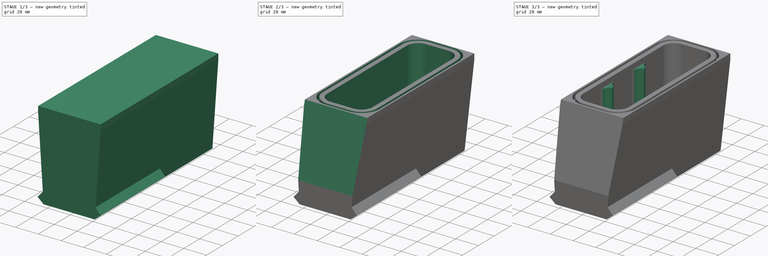
[diagram: build sequence overview — one tinted view per stage of 3, left to right]
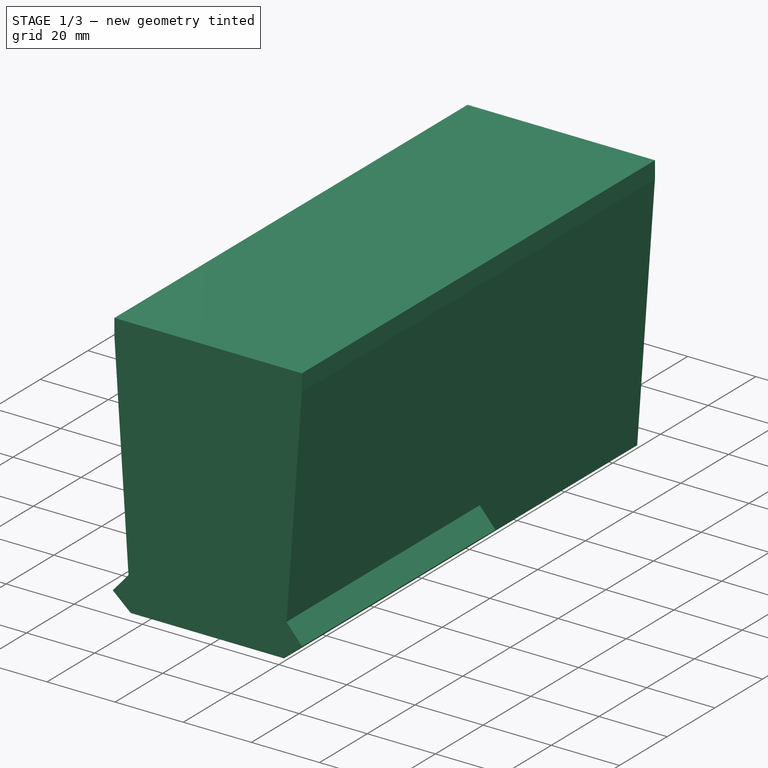
[diagram: stage 1 of 3 — iso view after this stage's code; geometry added in this stage tinted green]
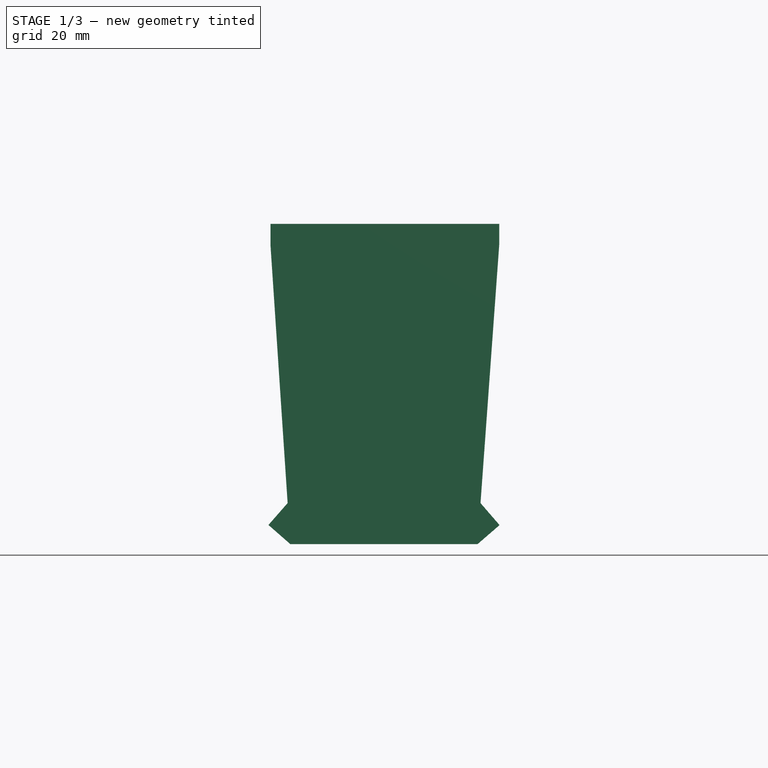
[diagram: stage 1 of 3 — front view after this stage's code; geometry added in this stage tinted green]
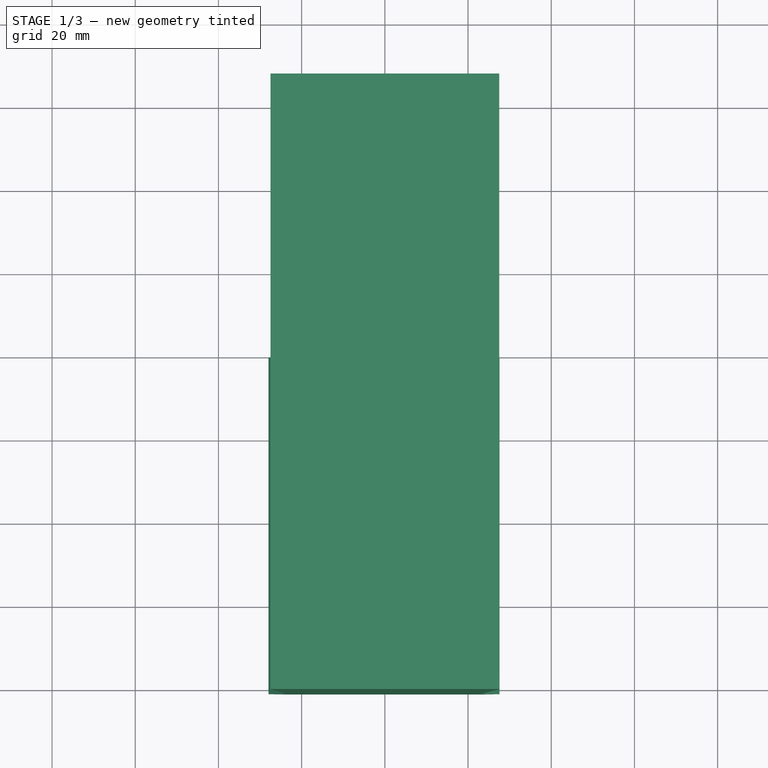
[diagram: stage 1 of 3 — top view after this stage's code; geometry added in this stage tinted green]
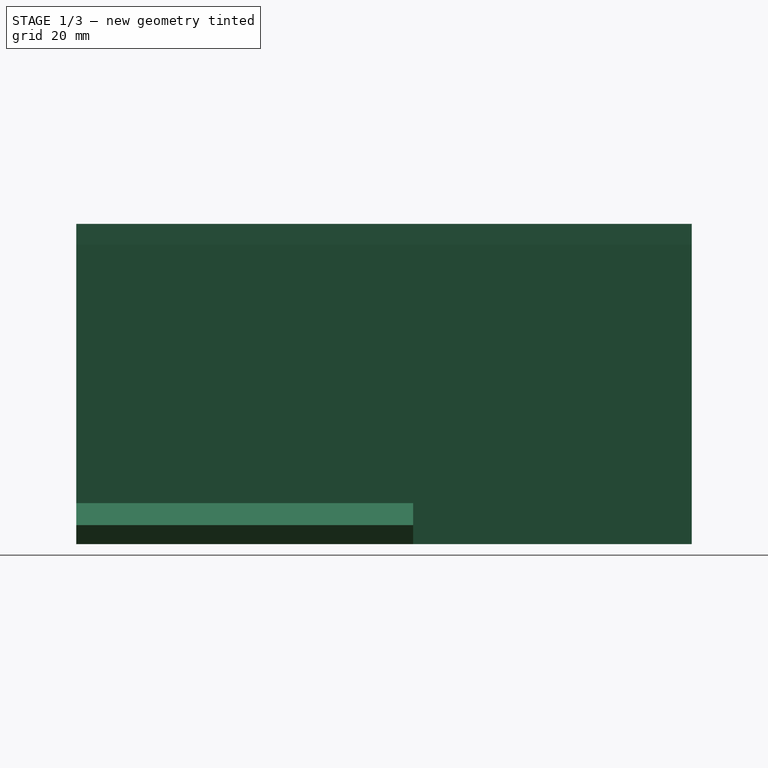
[diagram: stage 1 of 3 — right view after this stage's code; geometry added in this stage tinted green]
FCSTD DOCUMENT  (FreeCAD 1.0R39319 (Git))
Label: 3S4P (12V) 18650 Li-Ion battery pack for bike_SHALM
License: Creative Commons Attribution-NonCommercial 4.0
LicenseURL: https://creativecommons.org/licenses/by-nc/4.0/
objects: Sketcher::SketchObject×6, PartDesign::Pad×3, PartDesign::Pocket×2, PartDesign::Mirrored×2, PartDesign::SubtractivePipe×1, PartDesign::MultiTransform×1, PartDesign::Body×1
note: 37 computed .brp shape members not serialized (recipe doc carries the construction recipe); baked Part::Feature solids carry a one-line shape summary decoded from their .brp

FEATURE [Sketcher::SketchObject] Sketch
  ArcFitTolerance = 1e-06
  AttachmentSupport = -> [XZ_Plane]
  FullyConstrained = false
  MakeInternals = false
  MapMode = 5
  Placement = pos=(0,0,0) rot=(1,0,0;1.5708rad)
  sketch-geometry (6):
    g0: LineSegment StartX=-27.5 StartY=0 StartZ=0 EndX=-27.5 EndY=5 EndZ=0
    g1: LineSegment StartX=-27.5 StartY=5 StartZ=0 EndX=27.5 EndY=5 EndZ=0
    g2: LineSegment StartX=27.5 StartY=5 StartZ=0 EndX=27.5 EndY=0 EndZ=0
    g3: LineSegment StartX=27.5 StartY=0 StartZ=0 EndX=22.2839 EndY=-72 EndZ=0
    g4: LineSegment StartX=22.2839 StartY=-72 StartZ=0 EndX=-22.7161 EndY=-72 EndZ=0
    g5: LineSegment StartX=-22.7161 StartY=-72 StartZ=0 EndX=-27.5 EndY=0 EndZ=0
  constraints (16):
    c: PointOnObject(g0,g-1)
    c: Vertical(g0)
    c: Coincident(g0,g1)
    c: Horizontal(g1)
    c: Coincident(g1,g2)
    c: Vertical(g2)
    c: Coincident(g2,g3)
    c: Coincident(g3,g4)
    c: Horizontal(g4)
    c: Coincident(g4,g5)
    c: Coincident(g5,g0)
    c: Symmetric(g0,g2,g-2)
    c: DistanceY(g2,g2) = 5  'hh'
    c: DistanceX(g1,g1) = 55
    c: DistanceY(g3,g3) = 72
    c: DistanceX(g4,g4) = 45
FEATURE [PartDesign::Pad] Pad
  Direction = (0,-1,2e-16)
  Length = 81
  Length2 = 67
  Placement = pos=(0,0,0) rot=(1,0,0;1.5708rad)
  Profile = -> Sketch
  ReferenceAxis = -> Sketch [N_Axis]
  Refine = true
  Suppressed = false
  Type = 4
FEATURE [Sketcher::SketchObject] Sketch001
  ArcFitTolerance = 1e-06
  AttachmentSupport = -> [XZ_Plane]
  ExternalGeometry = -> [Sketch]
  FullyConstrained = true
  MakeInternals = false
  MapMode = 5
  Placement = pos=(0,0,0) rot=(1,0,0;1.5708rad)
  sketch-geometry (6):
    g0: LineSegment StartX=22.2839 StartY=-72 StartZ=0 EndX=27.5784 EndY=-67.4208 EndZ=0
    g1: LineSegment StartX=27.5784 StartY=-67.4208 StartZ=0 EndX=22.9992 EndY=-62.1264 EndZ=0
    g2: LineSegment StartX=22.9992 StartY=-62.1264 StartZ=0 EndX=22.2839 EndY=-72 EndZ=0
    g3: LineSegment StartX=-22.7161 StartY=-72 StartZ=0 EndX=-27.9831 EndY=-67.3893 EndZ=0
    g4: LineSegment StartX=-27.9831 StartY=-67.3893 StartZ=0 EndX=-23.3724 EndY=-62.1223 EndZ=0
    g5: LineSegment StartX=-23.3724 StartY=-62.1223 StartZ=0 EndX=-22.7161 EndY=-72 EndZ=0
  constraints (16):
    c: Coincident(g-3,g0)
    c: Coincident(g0,g1)
    c: PointOnObject(g1,g-3)
    c: Coincident(g1,g2)
    c: Coincident(g2,g0)
    c: Coincident(g-4,g3)
    c: Coincident(g3,g4)
    c: PointOnObject(g4,g-4)
    c: Coincident(g4,g5)
    c: Coincident(g5,g3)
    c: Equal(g3,g0)
    c: Equal(g1,g0)
    c: Equal(g4,g3)
    c: Equal(g5,g2)
    c: Perpendicular(g0,g1)
    c: Distance(g0,g0) = 7
FEATURE [PartDesign::Pad] Pad001
  BaseFeature = -> Pad
  Direction = (0,-1,2e-16)
  Length = 17
  Length2 = 10
  Placement = pos=(0,0,0) rot=(1,0,0;1.5708rad)
  Profile = -> Sketch001
  ReferenceAxis = -> Sketch001 [N_Axis]
  Refine = true
  Suppressed = false
  Type = 1
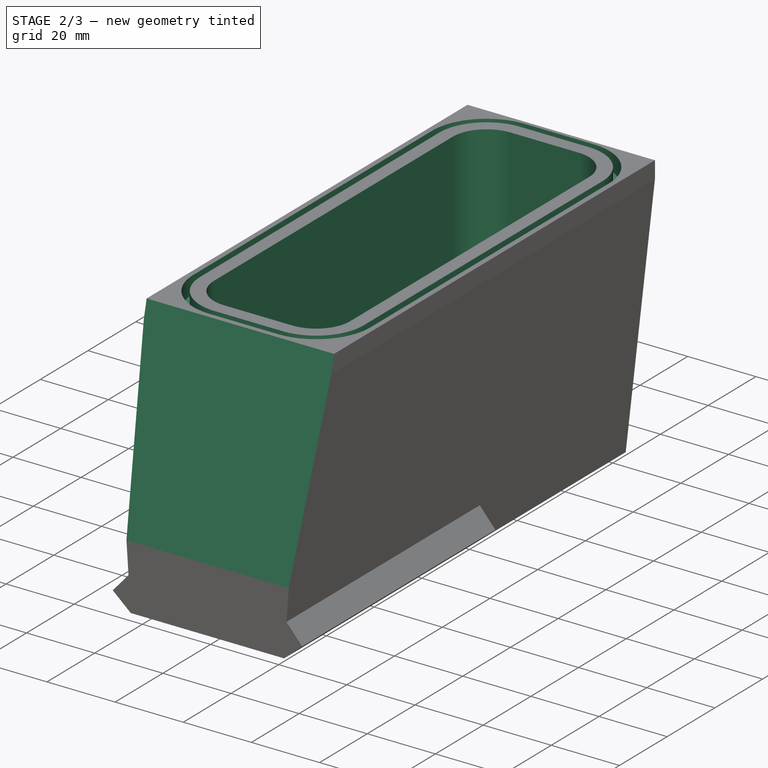
[diagram: stage 2 of 3 — iso view after this stage's code; geometry added in this stage tinted green]
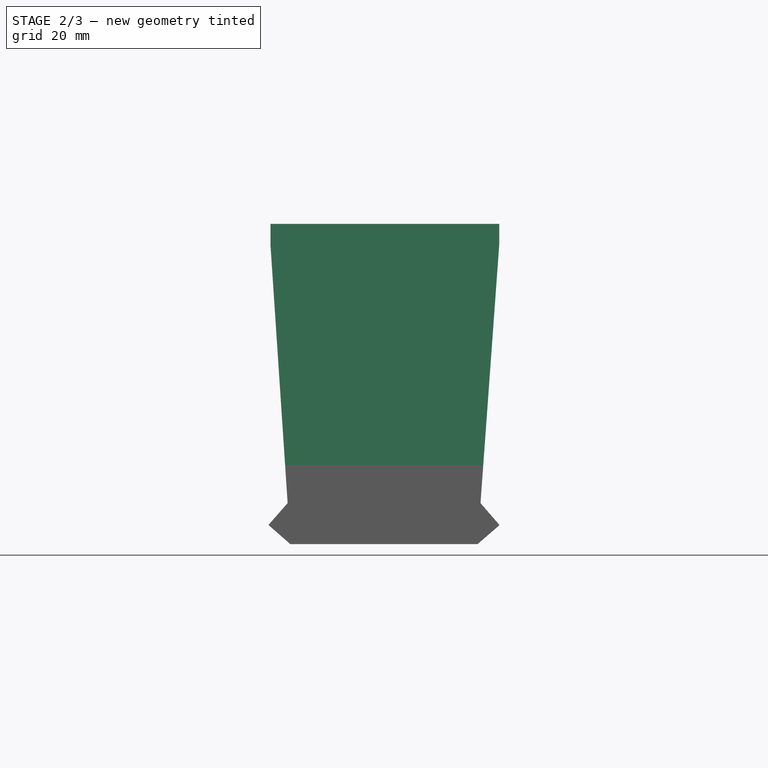
[diagram: stage 2 of 3 — front view after this stage's code; geometry added in this stage tinted green]
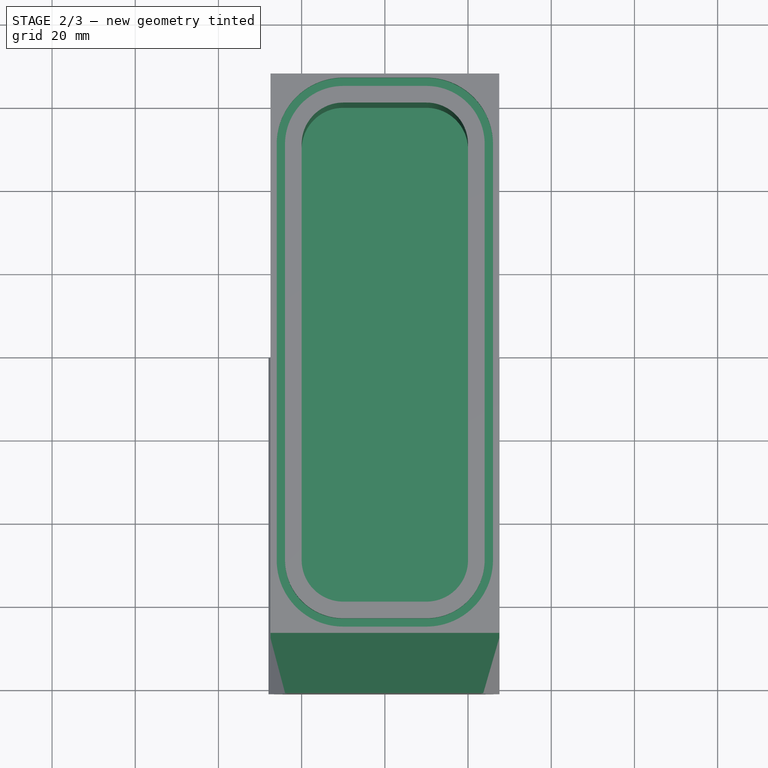
[diagram: stage 2 of 3 — top view after this stage's code; geometry added in this stage tinted green]
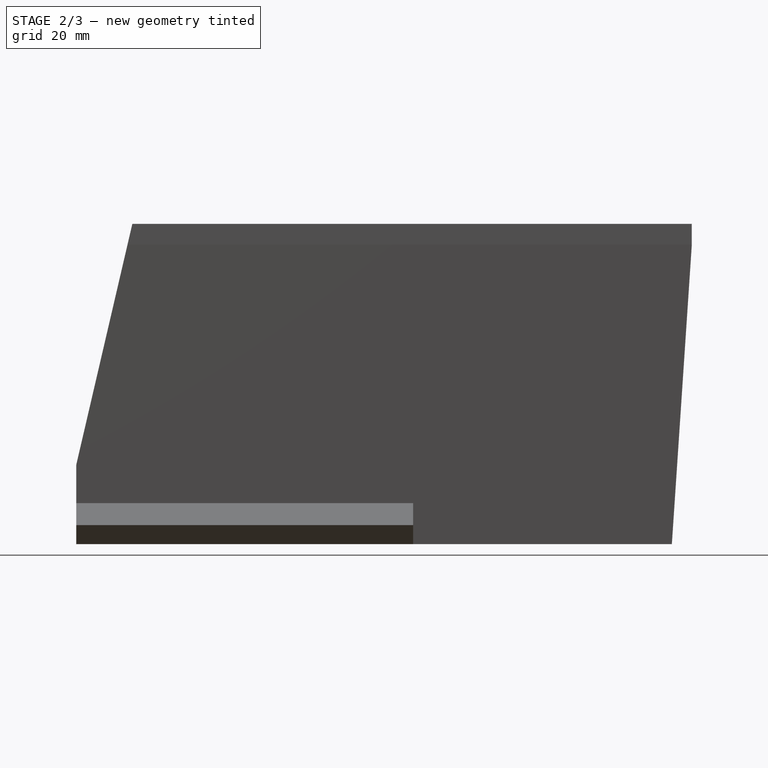
[diagram: stage 2 of 3 — right view after this stage's code; geometry added in this stage tinted green]
FEATURE [Sketcher::SketchObject] Sketch002
  ArcFitTolerance = 1e-06
  AttachmentSupport = -> [YZ_Plane]
  ExternalGeometry = -> [Sketch]
  FullyConstrained = true
  MakeInternals = false
  MapMode = 5
  Placement = pos=(0,0,0) rot=(0.57735,0.57735,0.57735;2.0944rad)
  expr: Constraints[15] = Pad.Length
  expr: Constraints[7] = Pad.Length2
  sketch-geometry (6):
    g0: LineSegment StartX=67 StartY=0 StartZ=0 EndX=67 EndY=-72 EndZ=0
    g1: LineSegment StartX=67 StartY=-72 StartZ=0 EndX=62.2 EndY=-72 EndZ=0
    g2: LineSegment StartX=62.2 StartY=-72 StartZ=0 EndX=67 EndY=0 EndZ=0
    g3: LineSegment StartX=-67.5 StartY=5 StartZ=0 EndX=-81 EndY=5 EndZ=0
    g4: LineSegment StartX=-81 StartY=5 StartZ=0 EndX=-81 EndY=-53 EndZ=0
    g5: LineSegment StartX=-81 StartY=-53 StartZ=0 EndX=-67.5 EndY=5 EndZ=0
  constraints (18):
    c: PointOnObject(g0,g-1)
    c: Vertical(g0)
    c: Coincident(g0,g1)
    c: Horizontal(g1)
    c: Coincident(g1,g2)
    c: Coincident(g2,g0)
    c: Horizontal(g1,g-3)
    c: DistanceX(g-1,g0) = 67
    c: DistanceX(g1,g1) = 4.8
    c: Horizontal(g3)
    c: Coincident(g3,g4)
    c: Vertical(g4)
    c: Coincident(g4,g5)
    c: Coincident(g5,g3)
    c: Horizontal(g3,g-4)
    c: DistanceX(g3,g-1) = 81
    c: DistanceX(g3,g3) = 13.5
    c: DistanceY(g-3,g4) = 19
FEATURE [PartDesign::Pocket] Pocket
  BaseFeature = -> Pad001
  Direction = (-1,0,0)
  Length = 5
  Length2 = 5
  Midplane = true
  Placement = pos=(0,0,0) rot=(1,0,0;1.5708rad)
  Profile = -> Sketch002
  ReferenceAxis = -> Sketch002 [N_Axis]
  Refine = true
  Suppressed = false
  Type = 1
FEATURE [Sketcher::SketchObject] Sketch003
  ArcFitTolerance = 1e-06
  AttachmentSupport = -> [XY_Plane]
  FullyConstrained = true
  MakeInternals = false
  MapMode = 5
  sketch-geometry (10):
    g0: LineSegment StartX=-10 StartY=-60 StartZ=0 EndX=10 EndY=-60 EndZ=0
    g1: LineSegment StartX=20 StartY=-50 StartZ=0 EndX=20 EndY=50 EndZ=0
    g2: LineSegment StartX=10 StartY=60 StartZ=0 EndX=-10 EndY=60 EndZ=0
    g3: LineSegment StartX=-20 StartY=50 StartZ=0 EndX=-20 EndY=-50 EndZ=0
    g4: ArcOfCircle CenterX=-10 CenterY=-50 CenterZ=0 NormalX=0 NormalY=0 NormalZ=1 AngleXU=0 Radius=10 StartAngle=3.14159 EndAngle=4.71239
    g5: ArcOfCircle CenterX=10 CenterY=-50 CenterZ=0 NormalX=0 NormalY=0 NormalZ=1 AngleXU=0 Radius=10 StartAngle=4.71239 EndAngle=6.28319
    g6: ArcOfCircle CenterX=10 CenterY=50 CenterZ=0 NormalX=0 NormalY=0 NormalZ=1 AngleXU=0 Radius=10 StartAngle=0 EndAngle=1.5708
    g7: ArcOfCircle CenterX=-10 CenterY=50 CenterZ=0 NormalX=0 NormalY=0 NormalZ=1 AngleXU=0 Radius=10 StartAngle=1.5708 EndAngle=3.14159
    g8: GeomPoint [constr] X=20 Y=60 Z=0
    g9: GeomPoint [constr] X=0 Y=0 Z=0
  constraints (22):
    c: Tangent(g0,g4) = -1.5708
    c: Tangent(g0,g5) = -1.5708
    c: Tangent(g1,g5) = -1.5708
    c: Tangent(g1,g6) = -1.5708
    c: Tangent(g2,g6) = -1.5708
    c: Tangent(g2,g7) = -1.5708
    c: Tangent(g3,g7) = -1.5708
    c: Tangent(g3,g4) = -1.5708
    c: Horizontal(g0)
    c: Horizontal(g2)
    c: Vertical(g1)
    c: Vertical(g3)
    c: Equal(g4,g5)
    c: Equal(g5,g6)
    c: Equal(g6,g7)
    c: Symmetric(g2,g0,g9)
    c: PointOnObject(g8,g1)
    c: PointOnObject(g8,g2)
    c: Distance(g1,g3) = 40
    c: Distance(g0,g2) = 120
    c: Radius(g5) = 10
    c: Coincident(g9,g-1)
FEATURE [PartDesign::Pocket] Pocket001
  BaseFeature = -> Pocket
  Direction = (0,0,-1)
  Length = 68
  Length2 = 5
  Placement = pos=(0,0,0) rot=(1,0,0;1.5708rad)
  Profile = -> Sketch003
  ReferenceAxis = -> Sketch003 [N_Axis]
  Refine = true
  Suppressed = false
  Type = 4
  expr: Length2 = Sketch.Constraints.hh
FEATURE [Sketcher::SketchObject] Sketch004
  ArcFitTolerance = 1e-06
  AttachmentSupport = -> [Sketch003]
  ExternalGeometry = -> [Sketch]
  FullyConstrained = true
  MakeInternals = false
  MapMode = 45
  Placement = pos=(-20,0,0) rot=(0,0.707107,0.707107;3.14159rad)
  sketch-geometry (4):
    g0: LineSegment StartX=6 StartY=0 StartZ=0 EndX=6 EndY=5 EndZ=0
    g1: LineSegment StartX=6 StartY=5 StartZ=0 EndX=4 EndY=5 EndZ=0
    g2: LineSegment StartX=4 StartY=5 StartZ=0 EndX=4 EndY=0 EndZ=0
    g3: LineSegment StartX=4 StartY=0 StartZ=0 EndX=6 EndY=0 EndZ=0
  constraints (12):
    c: Coincident(g0,g1)
    c: Coincident(g1,g2)
    c: Coincident(g2,g3)
    c: Coincident(g3,g0)
    c: Vertical(g0)
    c: Vertical(g2)
    c: Horizontal(g1)
    c: Horizontal(g3)
    c: PointOnObject(g0,g-1)
    c: PointOnObject(g0,g-3)
    c: DistanceX(g-1,g0) = 6
    c: DistanceX(g3,g3) = 2
FEATURE [PartDesign::SubtractivePipe] SubtractivePipe
  AuxilleryCurvelinear = true
  AuxillerySpineTangent = false
  BaseFeature = -> Pocket001
  Binormal = (0,0,0)
  Mode = 0
  Placement = pos=(0,0,0) rot=(1,0,0;1.5708rad)
  Profile = -> Sketch004
  Refine = true
  Spine = -> Sketch003
  SpineTangent = false
  Suppressed = false
  Transformation = 0
  Transition = 2
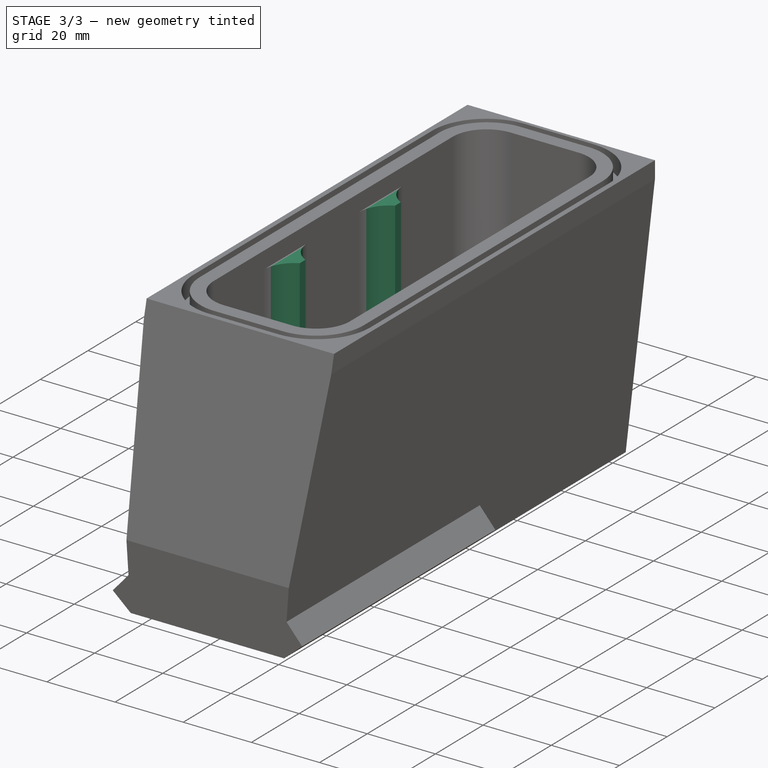
[diagram: stage 3 of 3 — iso view after this stage's code; geometry added in this stage tinted green]
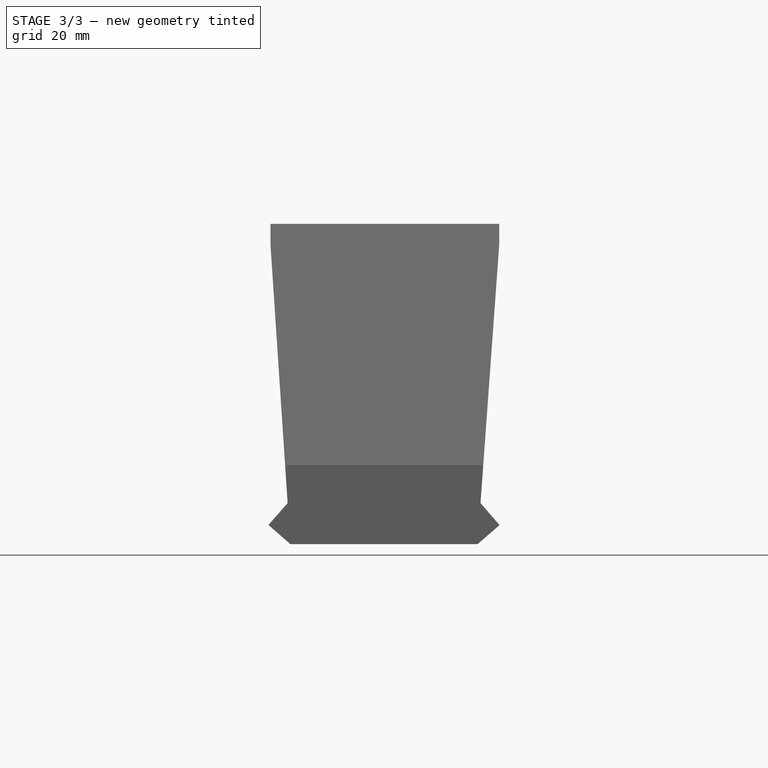
[diagram: stage 3 of 3 — front view after this stage's code; geometry added in this stage tinted green]
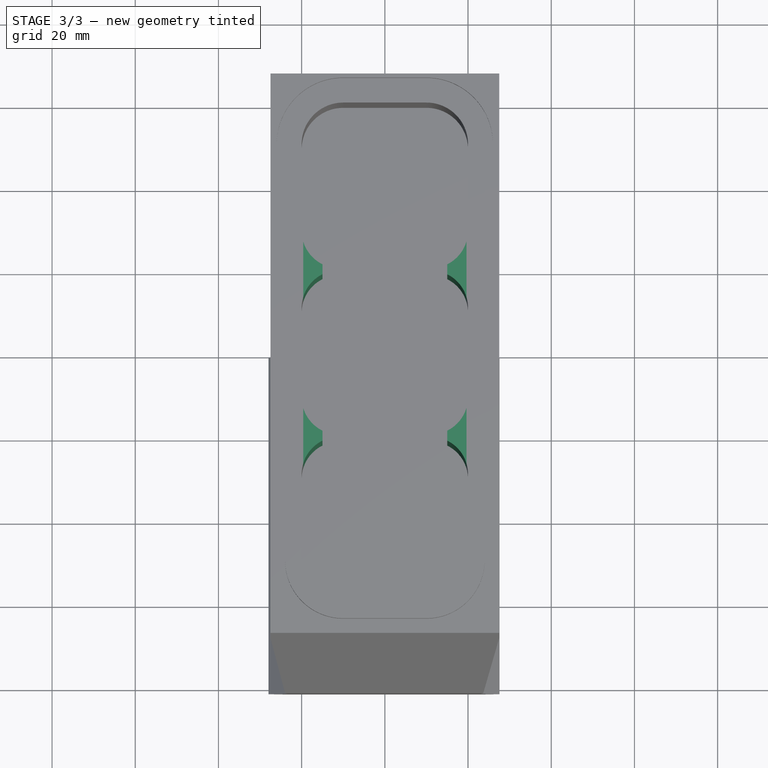
[diagram: stage 3 of 3 — top view after this stage's code; geometry added in this stage tinted green]
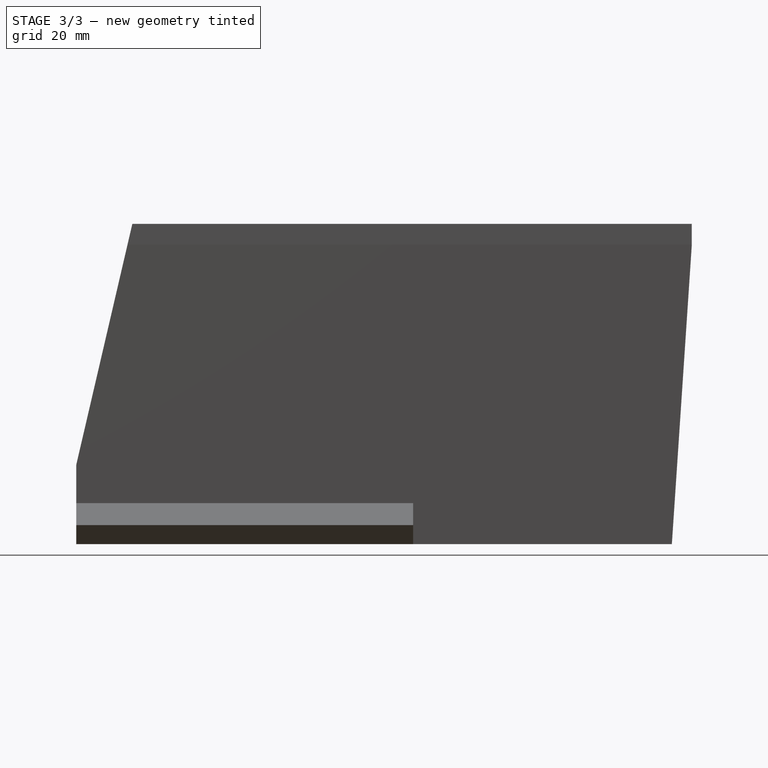
[diagram: stage 3 of 3 — right view after this stage's code; geometry added in this stage tinted green]
FEATURE [Sketcher::SketchObject] Sketch005
  ArcFitTolerance = 1e-06
  AttachmentSupport = -> [XY_Plane]
  ExternalGeometry = -> [Sketch003]
  FullyConstrained = true
  MakeInternals = false
  MapMode = 5
  sketch-geometry (5):
    g0: LineSegment StartX=15 StartY=18.8 StartZ=0 EndX=15 EndY=21.2 EndZ=0
    g1: ArcOfCircle CenterX=11 CenterY=29.2623 CenterZ=0 NormalX=0 NormalY=0 NormalZ=1 AngleXU=0 Radius=9 StartAngle=5.17294 EndAngle=6.28319
    g2: LineSegment StartX=20 StartY=29.2623 StartZ=0 EndX=20 EndY=10.7377 EndZ=0
    g3: ArcOfCircle CenterX=11 CenterY=10.7377 CenterZ=0 NormalX=0 NormalY=0 NormalZ=1 AngleXU=0 Radius=9 StartAngle=1e-16 EndAngle=1.11024
    g4: GeomPoint X=15 Y=20 Z=0
  constraints (13):
    c: Vertical(g0)
    c: PointOnObject(g1,g-3)
    c: Tangent(g1,g2) = 1.5708
    c: Tangent(g3,g2) = 1.5708
    c: PointOnObject(g2,g-3)
    c: Coincident(g0,g1)
    c: Coincident(g0,g3)
    c: Equal(g1,g3)
    c: Distance(g0,g0) = 2.4
    c: DistanceX(g-1,g0) = 15
    c: Symmetric(g0,g0,g4)
    c: DistanceY(g-1,g4) = 20
    c: Radius(g1) = 9
FEATURE [PartDesign::Pad] Pad002
  BaseFeature = -> SubtractivePipe
  Direction = (0,0,1)
  Length = 10
  Length2 = 10
  Placement = pos=(0,0,0) rot=(1,0,0;1.5708rad)
  Profile = -> Sketch005
  ReferenceAxis = -> Sketch005 [N_Axis]
  Refine = true
  Reversed = true
  Suppressed = false
  Type = 1
FEATURE [PartDesign::Mirrored] Mirrored
  MirrorPlane = -> Sketch005 [V_Axis]
  Placement = pos=(0,0,0) rot=(1,0,0;1.5708rad)
  Refine = true
  Suppressed = false
  TransformMode = 0
FEATURE [PartDesign::Mirrored] Mirrored001
  MirrorPlane = -> Sketch005 [H_Axis]
  Placement = pos=(0,0,0) rot=(1,0,0;1.5708rad)
  Refine = true
  Suppressed = false
  TransformMode = 0
FEATURE [PartDesign::MultiTransform] MultiTransform
  BaseFeature = -> Pad002
  Originals = -> [Pad002]
  Placement = pos=(0,0,0) rot=(1,0,0;1.5708rad)
  Refine = true
  Suppressed = false
  TransformMode = 0
  Transformations = -> [Mirrored,Mirrored001]
FEATURE [PartDesign::Body] Body
  AllowCompound = false
  Group = -> [Sketch,Pad,Sketch001,Pad001,Sketch002,Pocket,Sketch003,Pocket001,Sketch004,SubtractivePipe,Sketch005,Pad002,MultiTransform,Mirrored,Mirrored001]
  Origin = -> Origin
  Tip = -> MultiTransform
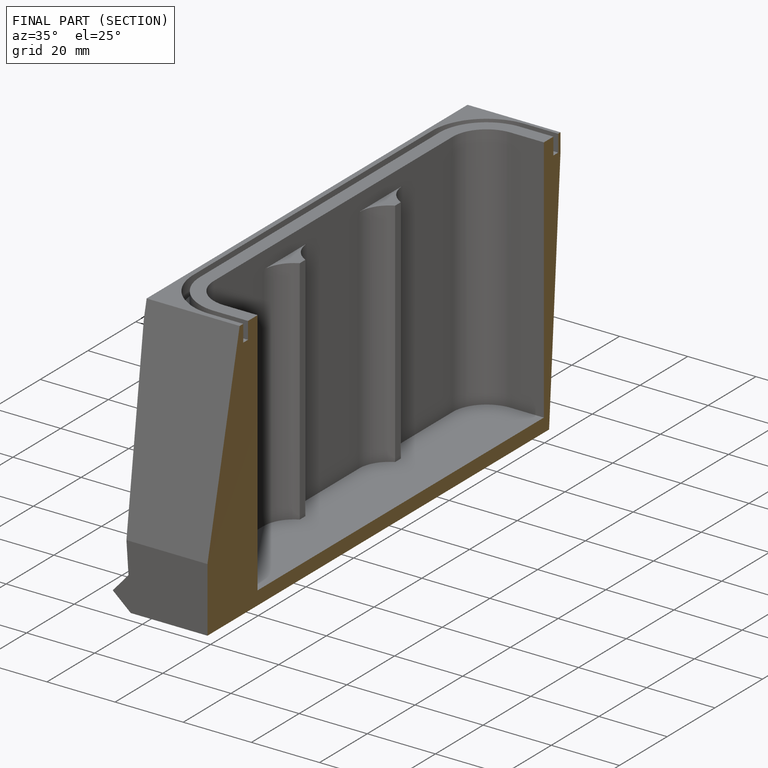
[diagram: finished part — half-section view (interior)]
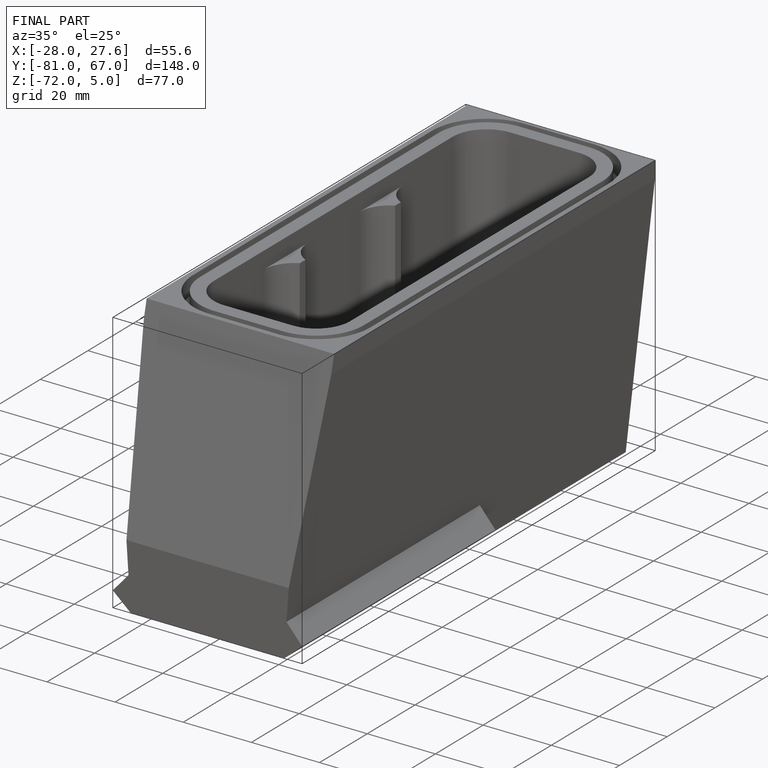
[diagram: finished part — iso view with bounding-box wireframe]
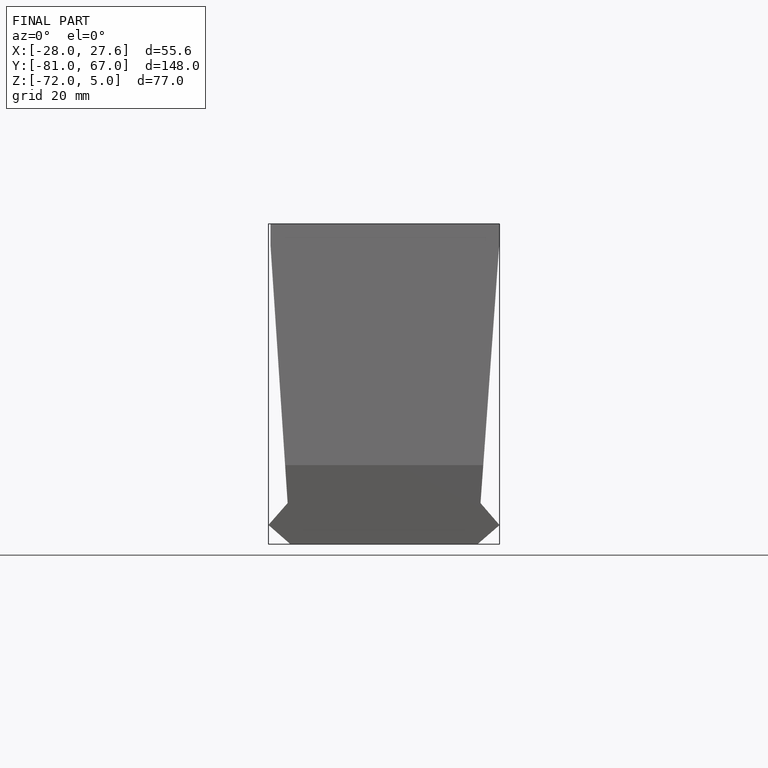
[diagram: finished part — front view with bounding-box wireframe]
